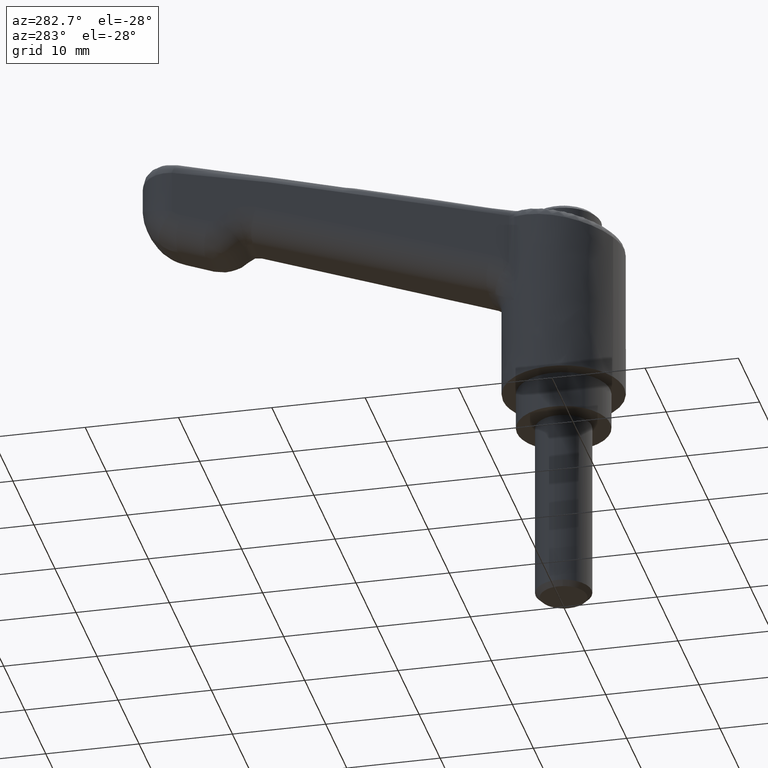
[diagram: clean part render]
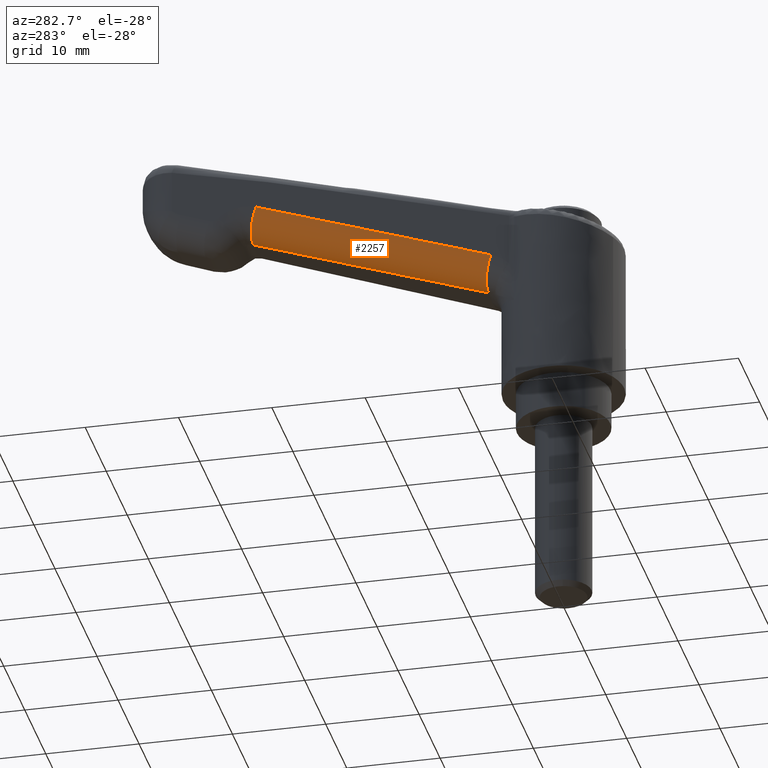
[diagram: same view with one face highlighted and labeled with its STEP entity id]
A machine part, auxiliary view. The second image highlights one B-rep face of the part: STEP entity #2257.
In plain terms, the highlighted face is a freeform B-spline surface patch.
Its self-contained STEP definition (entity closure, byte-faithful):
#2168=CARTESIAN_POINT('',(6.729902961068190,4.703016765244761,18.880297918210150));
#2169=VERTEX_POINT('',#2168);
#2170=CARTESIAN_POINT('',(7.663890390378490,1.703646324529980,16.050264270958049));
#2171=VERTEX_POINT('',#2170);
#2172=CARTESIAN_POINT('',(6.729902961068184,4.703016765244756,18.880297918210150));
#2173=CARTESIAN_POINT('',(7.718211638551536,4.682766362841004,16.069371387369920));
#2174=CARTESIAN_POINT('',(7.663890390378490,1.703646324529980,16.050264270958049));
#2182=(BOUNDED_CURVE()B_SPLINE_CURVE(2,(#2172,#2173,#2174),.UNSPECIFIED.,.F.,.U.)CURVE()GEOMETRIC_REPRESENTATION_ITEM()QUASI_UNIFORM_CURVE()RATIONAL_B_SPLINE_CURVE((1.0,0.709505970468123,1.0))REPRESENTATION_ITEM(''));
#2183=EDGE_CURVE('',#2169,#2171,#2182,.T.);
#2213=CARTESIAN_POINT('',(6.071241509071350,4.715484469287285,18.731871132118481));
#2214=CARTESIAN_POINT('',(32.655963563708148,4.170764654857315,28.082859854923399));
#2215=CARTESIAN_POINT('',(7.139661131740358,4.777824294203642,15.698001473038644));
#2216=CARTESIAN_POINT('',(33.724383186377160,4.233104479773678,25.048990195843558));
#2217=CARTESIAN_POINT('',(7.027274817078437,1.565408308394300,15.830382372541949));
#2218=CARTESIAN_POINT('',(33.611996871715242,1.020688493964332,25.181371095346861));
#2226=(BOUNDED_SURFACE()B_SPLINE_SURFACE(1,2,((#2213,#2215,#2217),(#2214,#2216,#2218)),.UNSPECIFIED.,.F.,.F.,.U.)B_SPLINE_SURFACE_WITH_KNOTS((2,2),(3,3),(0.0,28.186613072388631),(0.0,5.217748499531199),.UNSPECIFIED.)GEOMETRIC_REPRESENTATION_ITEM()RATIONAL_B_SPLINE_SURFACE(((1.0,0.681998360062498,1.0),(1.0,0.681998360062498,1.0)))REPRESENTATION_ITEM('')SURFACE());
#2227=CARTESIAN_POINT('',(32.033624131454147,4.184544603978870,27.780703603211851));
#2228=VERTEX_POINT('',#2227);
#2229=CARTESIAN_POINT('',(32.967611560764503,1.185174163263914,24.950669955959750));
#2230=VERTEX_POINT('',#2229);
#2231=CARTESIAN_POINT('',(32.033624131454147,4.184544603978870,27.780703603211851));
#2232=CARTESIAN_POINT('',(33.021932808937500,4.164294201575118,24.969777072371617));
#2233=CARTESIAN_POINT('',(32.967611560764460,1.185174163263934,24.950669955959771));
#2241=(BOUNDED_CURVE()B_SPLINE_CURVE(2,(#2231,#2232,#2233),.UNSPECIFIED.,.F.,.U.)CURVE()GEOMETRIC_REPRESENTATION_ITEM()QUASI_UNIFORM_CURVE()RATIONAL_B_SPLINE_CURVE((1.0,0.709505970468123,1.0))REPRESENTATION_ITEM(''));
#2242=EDGE_CURVE('',#2228,#2230,#2241,.T.);
#2243=ORIENTED_EDGE('',*,*,#2242,.T.);
#2244=CARTESIAN_POINT('',(7.663890390378490,1.703646324529980,16.050264270958049));
#2245=CARTESIAN_POINT('',(32.967611560764503,1.185174163263914,24.950669955959750));
#2246=QUASI_UNIFORM_CURVE('',1,(#2244,#2245),.UNSPECIFIED.,.F.,.U.);
#2247=EDGE_CURVE('',#2171,#2230,#2246,.T.);
#2248=ORIENTED_EDGE('',*,*,#2247,.F.);
#2249=ORIENTED_EDGE('',*,*,#2183,.F.);
#2250=CARTESIAN_POINT('',(32.033624131454147,4.184544603978870,27.780703603211851));
#2251=CARTESIAN_POINT('',(6.729902961068190,4.703016765244761,18.880297918210150));
#2252=QUASI_UNIFORM_CURVE('',1,(#2250,#2251),.UNSPECIFIED.,.F.,.U.);
#2253=EDGE_CURVE('',#2228,#2169,#2252,.T.);
#2254=ORIENTED_EDGE('',*,*,#2253,.F.);
#2255=EDGE_LOOP('',(#2243,#2248,#2249,#2254));
#2256=FACE_OUTER_BOUND('',#2255,.T.);
#2257=ADVANCED_FACE('',(#2256),#2226,.T.);